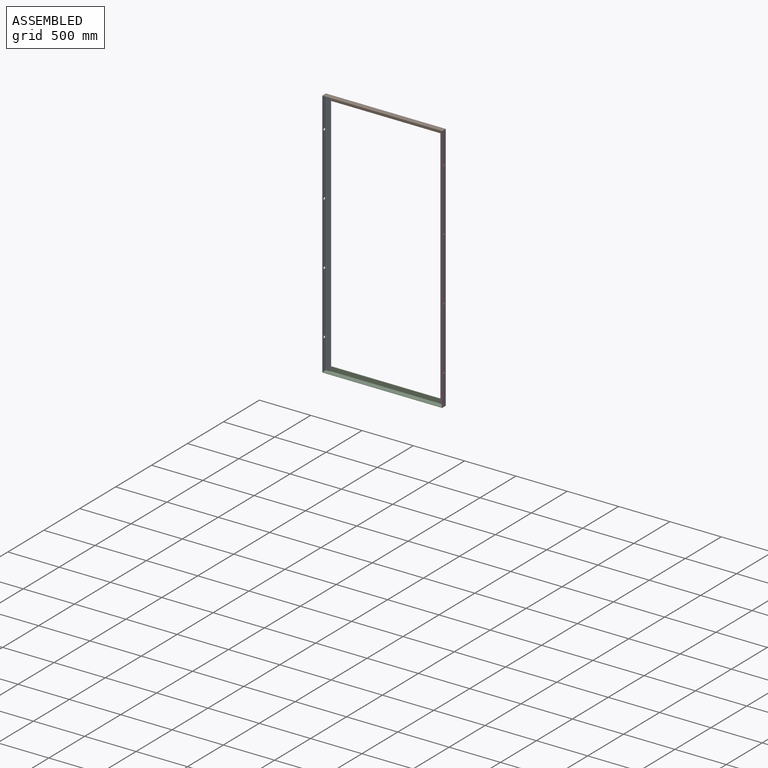
[diagram: assembled view]
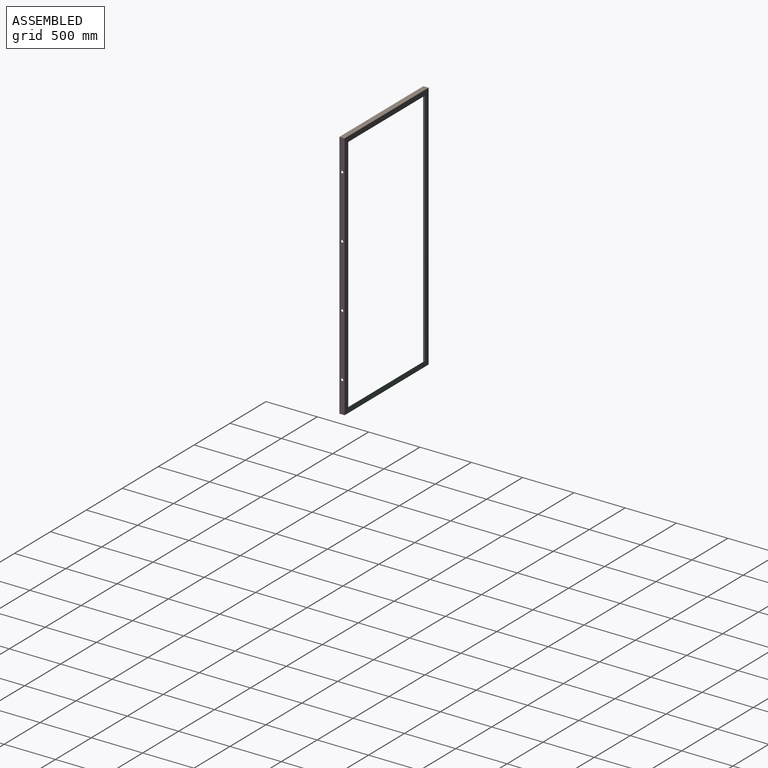
[diagram: assembled view, second angle]
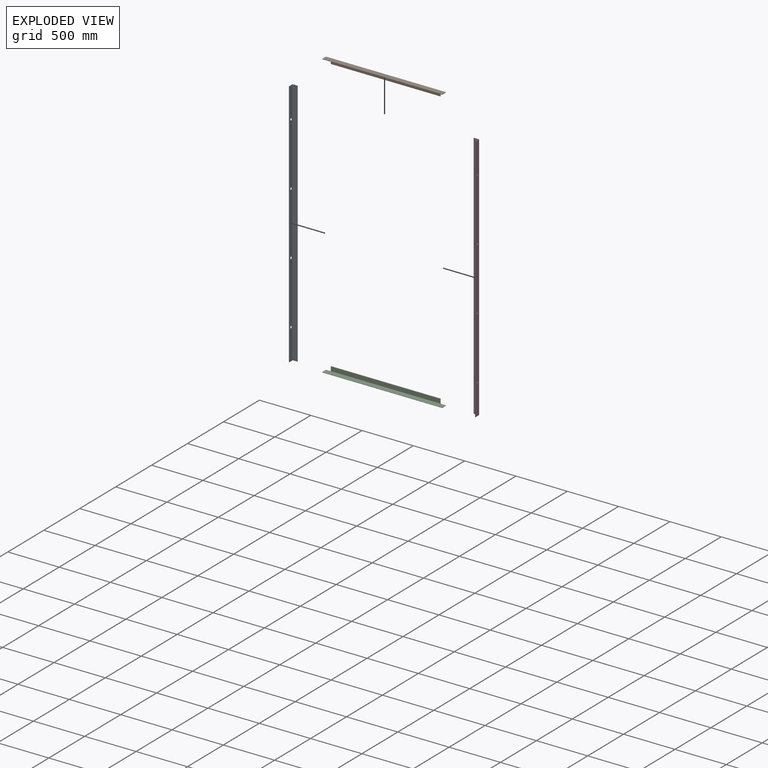
[diagram: exploded view]
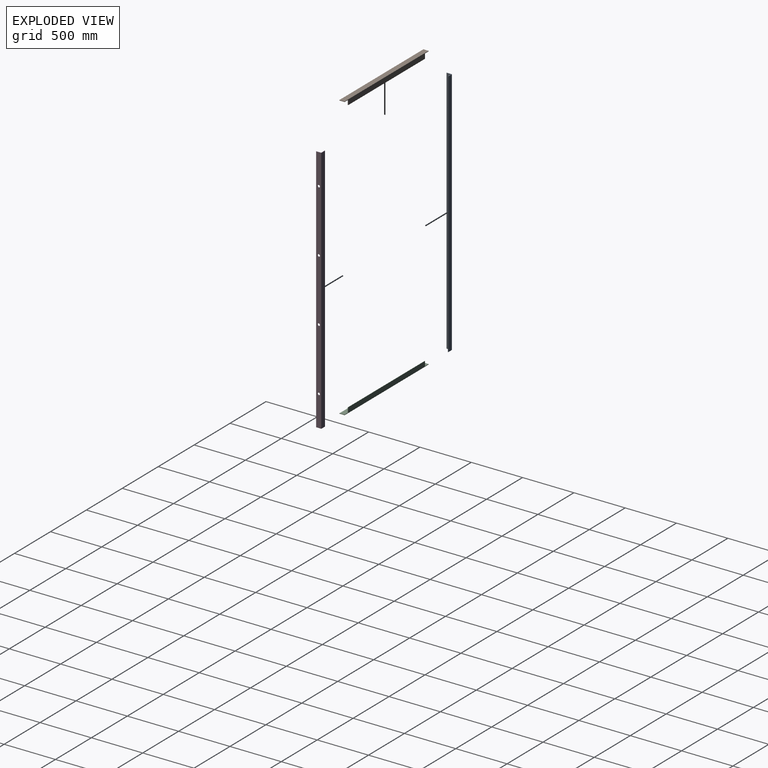
[diagram: exploded view, second angle]
ASSEMBLY  parts=4 mates=3
PART A: 15 faces, bbox 50.8x50.8x2428.9 mm
  f0: plane 2428.88x2.38mm, normal (0,-1,0), area 5783.8mm2, adj f1,f8,f9,f10
  f1: cylinder r=2.38mm len=2428.88mm, axis (0,0,1), area 9085.1mm2, adj f0,f2,f9,f10
  f2: plane 2428.88x38.89mm, normal (1,0,0), area 92803.6mm2, adj f1,f3,f9,f10,f11,f12,f13,f14
  f3: cylinder r=4.76mm len=2428.88mm, axis (0,0,1), area 18170.2mm2, adj f2,f4,f9,f10
  f4: plane 2428.88x38.89mm, normal (0,-1,0), area 94468.1mm2, adj f3,f5,f9,f10
  f5: cylinder r=2.38mm len=2428.88mm, axis (0,0,1), area 9085.1mm2, adj f4,f6,f9,f10
  f6: plane 2428.88x2.38mm, normal (1,0,0), area 5783.8mm2, adj f5,f7,f9,f10
  f7: plane 2428.88x50.8mm, normal (0,1,0), area 123386.9mm2, adj f6,f8,f9,f10
  f8: plane 2428.88x50.8mm, normal (-1,0,0), area 121722.4mm2, adj f0,f7,f9,f10,f11,f12,f13,f14
  f9: plane 50.8x50.8mm, normal (0,0,-1), area 463.6mm2, adj f0,f1,f2,f3,f4,f5,f6,f7
  f10: plane 50.8x50.8mm, normal (0,0,1), area 463.6mm2, adj f0,f1,f2,f3,f4,f5,f6,f7
  f11: cylinder r=11.51mm len=23.02mm, axis (-1,0,0), area 344.4mm2, adj f2,f8
  f12: cylinder r=11.51mm len=23.02mm, axis (-1,0,0), area 344.4mm2, adj f2,f8
  f13: cylinder r=11.51mm len=23.02mm, axis (-1,0,0), area 344.4mm2, adj f2,f8
  f14: cylinder r=11.51mm len=23.02mm, axis (-1,0,0), area 344.4mm2, adj f2,f8
PART B: 13 faces, bbox 1168.4x50.8x50.8 mm
  f0: plane 1168.4x50.8mm, normal (0,1,0), area 54677.3mm2, adj f4,f5,f6,f9,f10,f11,f12
  f1: cylinder r=4.76mm len=1066.8mm, axis (-1,0,0), area 7980.6mm2, adj f2,f9,f11,f12
  f2: plane 1066.8x38.89mm, normal (0,-1,0), area 41491.9mm2, adj f1,f3,f11,f12
  f3: cylinder r=2.38mm len=1066.8mm, axis (-1,0,0), area 3990.3mm2, adj f2,f5,f11,f12
  f4: plane 50.8x4.76mm, normal (1,0,0), area 240.7mm2, adj f0,f7,f8,f9,f10
  f5: plane 1066.8x2.38mm, normal (0,0,-1), area 2540.3mm2, adj f0,f3,f11,f12
  f6: plane 50.8x4.76mm, normal (-1,0,0), area 240.7mm2, adj f0,f7,f8,f9,f10
  f7: plane 1168.4x2.38mm, normal (0,-1,0), area 2782.3mm2, adj f4,f6,f8,f10
  f8: cylinder r=2.38mm len=1168.4mm, axis (-1,0,0), area 4370.4mm2, adj f4,f6,f7,f9
  f9: plane 1168.4x48.42mm, normal (0,0,-1), area 46411.2mm2, adj f0,f1,f4,f6,f8,f11,f12
  f10: plane 1168.4x50.8mm, normal (0,0,1), area 59354.7mm2, adj f0,f4,f6,f7
  f11: plane 46.04x9.53mm, normal (-1,0,0), area 222.9mm2, adj f0,f1,f2,f3,f5,f9
  f12: plane 46.04x9.53mm, normal (1,0,0), area 222.9mm2, adj f0,f1,f2,f3,f5,f9
PART C: same geometry as B
PART D: same geometry as A
PLACE A t=(-50.8,0,46.04)mm
PLACE B t=(-50.8,0,46.04)mm
PLACE C rot(axis=(0,1,0),180deg) t=(1117.6,0,-2382.84)mm
PLACE D rot(axis=(0,-1,0),180deg) t=(1117.6,0,-2382.84)mm
MATE fastened C.f9 <-> A.f9  axis (0,0,1) through (-50.8,0,-2382.84)mm
MATE fastened A.f10 <-> B.f9  axis (0,0,1) through (-50.8,0,46.04)mm
MATE fastened D.f9 <-> B.f9  axis (0,0,1) through (1117.6,0,46.04)mm
